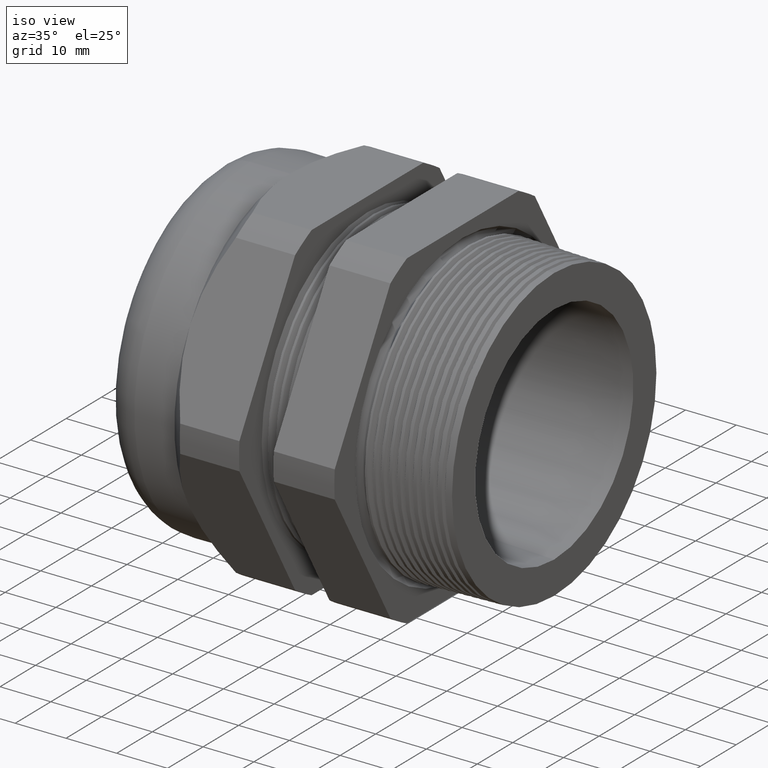
[diagram: clean part render]
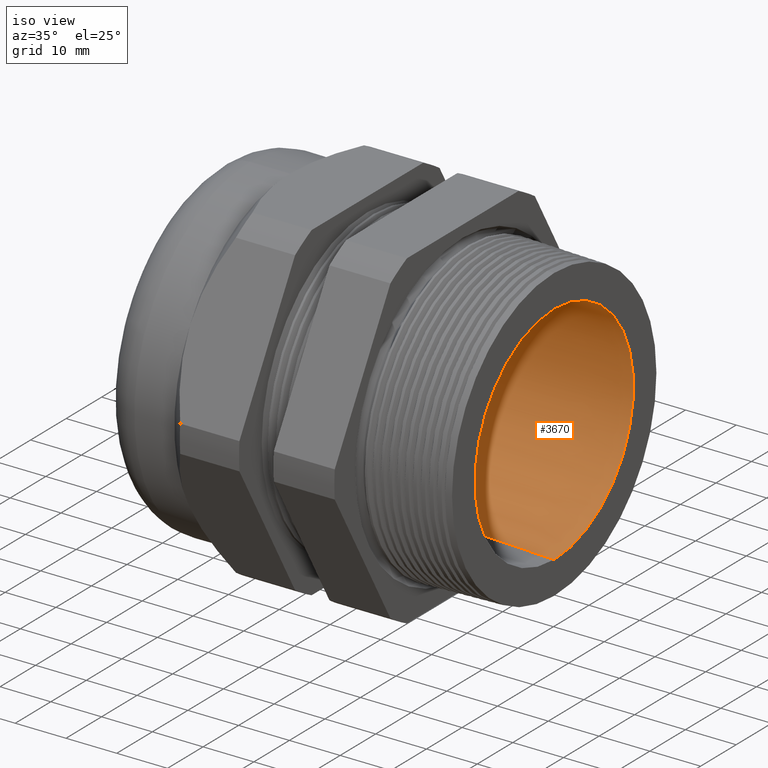
[diagram: same view with one face highlighted and labeled with its STEP entity id]
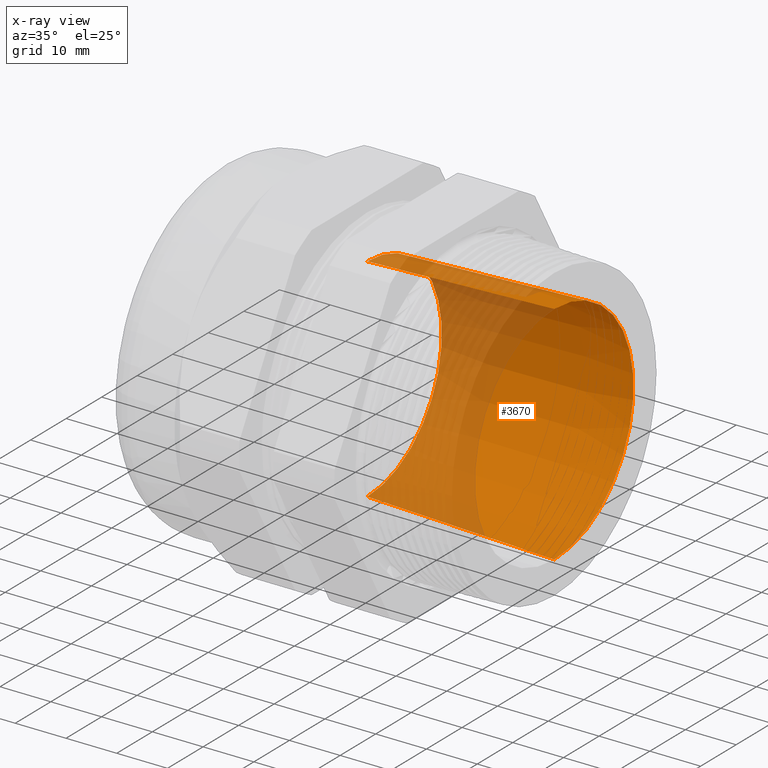
[diagram: x-ray of the same camera — body ghosted, the highlighted face saturated]
A machine part, iso view. The second image highlights one B-rep face of the part: STEP entity #3670.
The next image is the same camera in x-ray: the body ghosted, the highlighted face saturated — about 39% of this face is hidden behind the body in this view.
In plain terms, the highlighted conical surface has half-angle 2.074 deg.
Its self-contained STEP definition (entity closure, byte-faithful):
#1857 = DIRECTION ( 'NONE',  ( 0.0000000000000000000, 0.0000000000000000000, -1.000000000000000000 ) ) ;
#1858 = DIRECTION ( 'NONE',  ( 1.000000000000000000, 0.0000000000000000000, 0.0000000000000000000 ) ) ;
#1859 = CARTESIAN_POINT ( 'NONE',  ( -1.049450000000000000, 0.0000000000000000000, 0.0000000000000000000 ) ) ;
#1860 = AXIS2_PLACEMENT_3D ( 'NONE', #1859, #1858, #1857 ) ;
#1863 = CONICAL_SURFACE ( 'NONE', #1860, 0.8249999999999998400, 0.03620480817059349600 ) ;
#1864 = FACE_OUTER_BOUND ( 'NONE', #3733, .T. ) ;
#1968 = DIRECTION ( 'NONE',  ( 0.0000000000000000000, 0.0000000000000000000, -1.000000000000000000 ) ) ;
#1969 = DIRECTION ( 'NONE',  ( 1.000000000000000000, 0.0000000000000000000, 0.0000000000000000000 ) ) ;
#1970 = CARTESIAN_POINT ( 'NONE',  ( -1.049450000000000000, 0.0000000000000000000, 0.0000000000000000000 ) ) ;
#1971 = AXIS2_PLACEMENT_3D ( 'NONE', #1970, #1969, #1968 ) ;
#1972 = CIRCLE ( 'NONE', #1971, 0.8249999999999998400 ) ;
#2016 = DIRECTION ( 'NONE',  ( 0.0000000000000000000, 0.0000000000000000000, -1.000000000000000000 ) ) ;
#2017 = DIRECTION ( 'NONE',  ( 1.000000000000000000, 0.0000000000000000000, 0.0000000000000000000 ) ) ;
#2018 = CARTESIAN_POINT ( 'NONE',  ( 0.4000000000000000800, 0.0000000000000000000, 0.0000000000000000000 ) ) ;
#2019 = AXIS2_PLACEMENT_3D ( 'NONE', #2018, #2017, #2016 ) ;
#2020 = CIRCLE ( 'NONE', #2019, 0.8774999999999999500 ) ;
#2269 = CARTESIAN_POINT ( 'NONE',  ( -1.049450000000000000, 1.042480587774184400E-016, 0.8249999999999998400 ) ) ;
#2421 = CARTESIAN_POINT ( 'NONE',  ( 0.4000000000000000800, 0.0000000000000000000, -0.8774999999999999500 ) ) ;
#2427 = DIRECTION ( 'NONE',  ( 0.9993446775197678500, 4.432841676491112100E-018, 0.03619689921679809100 ) ) ;
#2428 = VECTOR ( 'NONE', #2427, 39.37007874015748900 ) ;
#2429 = CARTESIAN_POINT ( 'NONE',  ( -1.049450000000000000, 1.010333609296566100E-016, 0.8249999999999998400 ) ) ;
#2430 = LINE ( 'NONE', #2429, #2428 ) ;
#2435 = CARTESIAN_POINT ( 'NONE',  ( 0.4000000000000000800, 1.074627566251802300E-016, 0.8774999999999999500 ) ) ;
#2471 = DIRECTION ( 'NONE',  ( 0.9993446775197678500, 0.0000000000000000000, -0.03619689921679809100 ) ) ;
#2472 = VECTOR ( 'NONE', #2471, 39.37007874015748900 ) ;
#2473 = CARTESIAN_POINT ( 'NONE',  ( -1.049450000000000000, 0.0000000000000000000, -0.8249999999999998400 ) ) ;
#2474 = LINE ( 'NONE', #2473, #2472 ) ;
#2486 = CARTESIAN_POINT ( 'NONE',  ( -1.049450000000000000, 0.0000000000000000000, -0.8249999999999998400 ) ) ;
#3670 = ADVANCED_FACE ( 'NONE', ( #1864 ), #1863, .F. ) ;
#3673 = ORIENTED_EDGE ( 'NONE', *, *, #3738, .T. ) ;
#3712 = EDGE_CURVE ( 'NONE', #4026, #3897, #1972, .T. ) ;
#3713 = ORIENTED_EDGE ( 'NONE', *, *, #4002, .T. ) ;
#3733 = EDGE_LOOP ( 'NONE', ( #3770, #3771, #3713, #3673 ) ) ;
#3738 = EDGE_CURVE ( 'NONE', #3997, #3991, #2020, .T. ) ;
#3770 = ORIENTED_EDGE ( 'NONE', *, *, #3995, .F. ) ;
#3771 = ORIENTED_EDGE ( 'NONE', *, *, #3712, .F. ) ;
#3897 = VERTEX_POINT ( 'NONE', #2269 ) ;
#3991 = VERTEX_POINT ( 'NONE', #2435 ) ;
#3995 = EDGE_CURVE ( 'NONE', #3897, #3991, #2430, .T. ) ;
#3997 = VERTEX_POINT ( 'NONE', #2421 ) ;
#4002 = EDGE_CURVE ( 'NONE', #4026, #3997, #2474, .T. ) ;
#4026 = VERTEX_POINT ( 'NONE', #2486 ) ;